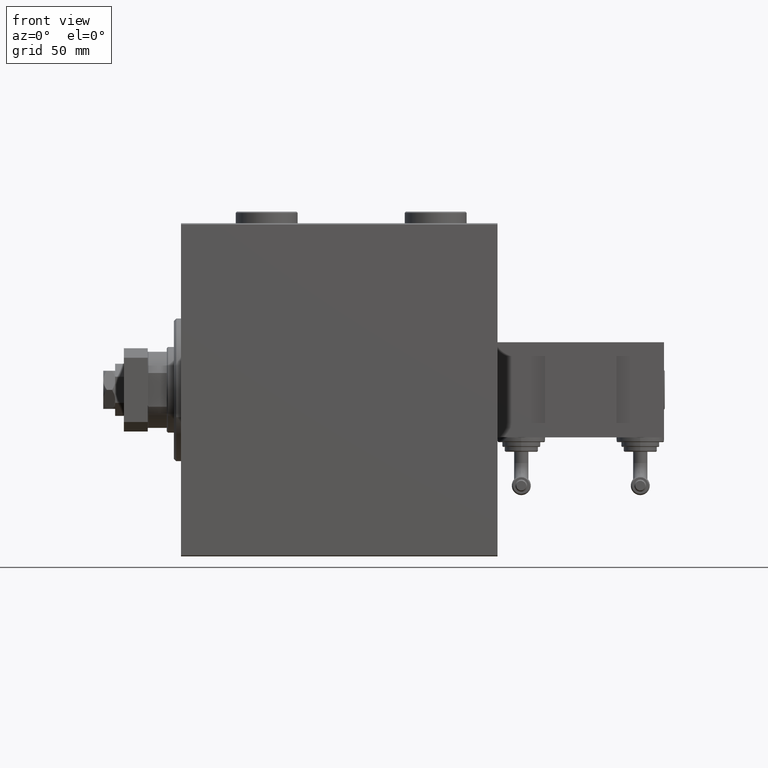
[diagram: clean part render]
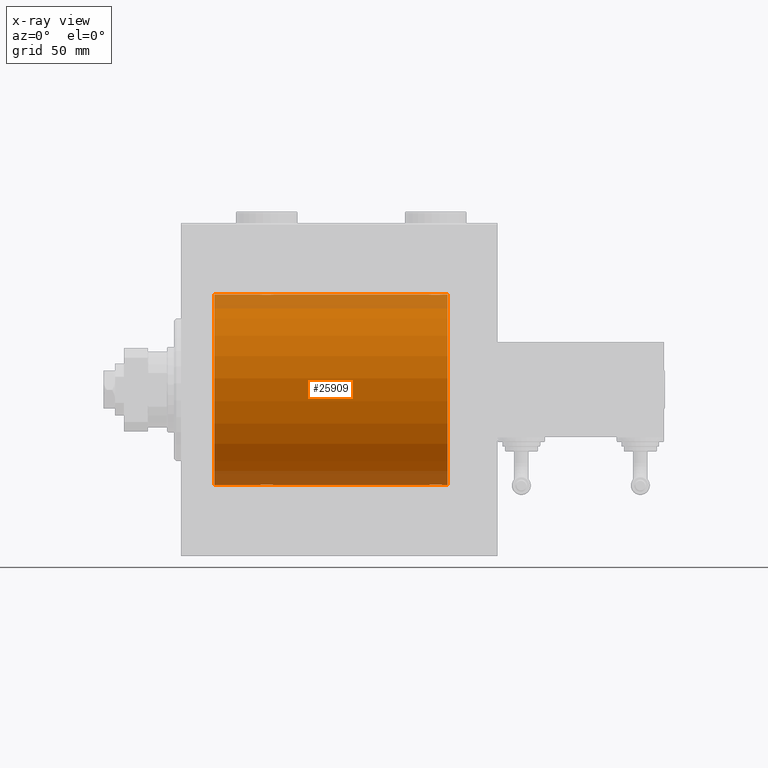
[diagram: x-ray — body ghosted, one internal face saturated and labeled with its STEP entity id]
A machine part, front view, then the same camera in x-ray: the body is ghosted and one INTERNAL B-rep face — a face not visible from any outside direction — is saturated and labeled: STEP entity #25909.
In plain terms, the highlighted cylindrical surface (partial cylindrical patch) has radius 40 mm, axis along (-1, -0, -0).
Its self-contained STEP definition (entity closure, byte-faithful):
#96 = DIRECTION ( 'NONE',  ( -1.000000000000000000, -0.000000000000000000, -0.000000000000000000 ) ) ;
#285 = CARTESIAN_POINT ( 'NONE',  ( 38.25829670320501918, -1.984537326394312462, 39.95097977400578060 ) ) ;
#779 = DIRECTION ( 'NONE',  ( -1.000000000000000000, -0.000000000000000000, -0.000000000000000000 ) ) ;
#1339 = CARTESIAN_POINT ( 'NONE',  ( 34.17309815367587333, -2.387636253591803648, -39.92882473497732576 ) ) ;
#1602 = CARTESIAN_POINT ( 'NONE',  ( 38.84665273013138886, -0.9668189122103337807, -39.98872185468385965 ) ) ;
#1668 = CARTESIAN_POINT ( 'NONE',  ( 104.1533472698686182, -0.9668189122103458821, 39.98872185468384544 ) ) ;
#1716 = ORIENTED_EDGE ( 'NONE', *, *, #34505, .T. ) ;
#1853 = CARTESIAN_POINT ( 'NONE',  ( 33.00000000000000000, -0.3964922677423601272, -40.00000000000001421 ) ) ;
#1961 = DIRECTION ( 'NONE',  ( -1.000000000000000000, 0.000000000000000000, 0.000000000000000000 ) ) ;
#1962 = DIRECTION ( 'NONE',  ( 0.000000000000000000, 0.000000000000000000, 1.000000000000000000 ) ) ;
#2101 = CARTESIAN_POINT ( 'NONE',  ( 39.00000000000000000, 4.898587181755365697E-15, -40.00000000000000000 ) ) ;
#2122 = CARTESIAN_POINT ( 'NONE',  ( 36.77869523415741781, -2.903766417398227162, -39.89448096967571900 ) ) ;
#2192 = CARTESIAN_POINT ( 'NONE',  ( 108.9813627951423456, -2.261082456166716881, 39.93628274425758207 ) ) ;
#2450 = CARTESIAN_POINT ( 'NONE',  ( 109.3825168091146622, -1.833695109615728125, 39.95828327492363741 ) ) ;
#2554 = ORIENTED_EDGE ( 'NONE', *, *, #43270, .T. ) ;
#2611 = CARTESIAN_POINT ( 'NONE',  ( 109.9042517365135296, -0.7773146824710993608, -39.99291453282344122 ) ) ;
#2669 = EDGE_CURVE ( 'NONE', #2677, #20990, #26461, .T. ) ;
#2677 = VERTEX_POINT ( 'NONE', #6740 ) ;
#2713 = CARTESIAN_POINT ( 'NONE',  ( 105.4955691708653518, -2.602909538701771996, 39.91537030566259148 ) ) ;
#2818 = ORIENTED_EDGE ( 'NONE', *, *, #32365, .T. ) ;
#2873 = VERTEX_POINT ( 'NONE', #2101 ) ;
#3142 = CARTESIAN_POINT ( 'NONE',  ( 109.6043359991208632, -1.502129635934003504, -39.97212271185185273 ) ) ;
#3223 = CARTESIAN_POINT ( 'NONE',  ( 34.49556917086532337, -2.602909538701755565, 39.91537030566259148 ) ) ;
#3402 = CARTESIAN_POINT ( 'NONE',  ( 104.7417032967949950, -1.984537326394304468, -39.95097977400578060 ) ) ;
#3661 = CARTESIAN_POINT ( 'NONE',  ( 107.7786952341574249, -2.903766417398237820, -39.89448096967571189 ) ) ;
#3742 = CARTESIAN_POINT ( 'NONE',  ( 33.73902383005257377, -1.981471132463168638, 39.95113231465138881 ) ) ;
#3971 = VERTEX_POINT ( 'NONE', #11741 ) ;
#3999 = CARTESIAN_POINT ( 'NONE',  ( 35.03061658105535514, -2.845855236045346626, 39.89870693240651889 ) ) ;
#5378 = CARTESIAN_POINT ( 'NONE',  ( 112.0000000000000000, 4.898587196589413026E-15, -40.00000000000000000 ) ) ;
#5533 = ORIENTED_EDGE ( 'NONE', *, *, #52512, .T. ) ;
#5570 = CARTESIAN_POINT ( 'NONE',  ( 38.38251680911464803, -1.833695109615719021, 39.95828327492363741 ) ) ;
#5657 = VECTOR ( 'NONE', #11187, 1000.000000000000000 ) ;
#5835 = CARTESIAN_POINT ( 'NONE',  ( 13.99999999999999822, 0.000000000000000000, 0.000000000000000000 ) ) ;
#5841 = CARTESIAN_POINT ( 'NONE',  ( 36.20041286019198168, -2.999840380514733340, -39.88735335562824957 ) ) ;
#5924 = CARTESIAN_POINT ( 'NONE',  ( 104.0000000000000142, 4.637093495725619447E-15, -40.00000000000000000 ) ) ;
#6100 = CARTESIAN_POINT ( 'NONE',  ( 37.98461447812281477, -2.258217541132894191, -39.93644519243654400 ) ) ;
#6169 = CARTESIAN_POINT ( 'NONE',  ( 107.7745567882634248, -2.904869018727233687, 39.89440043036668726 ) ) ;
#6623 = CARTESIAN_POINT ( 'NONE',  ( 37.33224268865864559, -2.695129988695730727, -39.90917164320281074 ) ) ;
#6740 = CARTESIAN_POINT ( 'NONE',  ( 112.0000000000000000, 4.898587196589413026E-15, -40.00000000000000000 ) ) ;
#6852 = CARTESIAN_POINT ( 'NONE',  ( 109.2609761699474404, -1.981471132463168638, -39.95113231465138881 ) ) ;
#7103 = EDGE_CURVE ( 'NONE', #38815, #40115, #47774, .T. ) ;
#7120 = CARTESIAN_POINT ( 'NONE',  ( 104.0000000000000284, -0.3964922677423631803, -40.00000000000000000 ) ) ;
#7732 = CARTESIAN_POINT ( 'NONE',  ( 33.01898122889073051, -0.3904143323715975056, 39.99856256910221219 ) ) ;
#7992 = CARTESIAN_POINT ( 'NONE',  ( 32.99999999999997158, -0.1957844162750553285, 40.00000000000000000 ) ) ;
#9355 = B_SPLINE_CURVE_WITH_KNOTS ( 'NONE', 3,
 ( #40117, #7992, #7732, #28433, #40381, #35883, #31899, #36658, #3742, #39594, #27378, #3223, #19657, #3999, #35618, #19925, #36403, #36149, #52366, #32163, #48359, #11965, #28171, #44363, #12216, #285, #5570, #28948, #20965, #28691, #40900, #29741 ),
 .UNSPECIFIED., .F., .F.,
 ( 4, 2, 2, 2, 2, 2, 2, 2, 2, 2, 2, 2, 2, 2, 2, 4 ),
 ( 0.009382660366305081018, 0.009968941372944116822, 0.01055522237958315263, 0.01114150338622219016, 0.01172778439286122597, 0.01231406539950026177, 0.01290034640613929931, 0.01348662741277833511, 0.01407290841941737092, 0.01465918942605640846, 0.01524547043269544253, 0.01583175143933448006, 0.01641803244597351413, 0.01700431345261255167, 0.01759059445925158921, 0.01876315647252966082 ),
 .UNSPECIFIED. ) ;
#9560 = CARTESIAN_POINT ( 'NONE',  ( 34.49911531595964220, -2.604941918888299401, -39.91523680494982784 ) ) ;
#9628 = CARTESIAN_POINT ( 'NONE',  ( 104.0000000000000142, -1.483492375313373751E-23, 40.00000000000000000 ) ) ;
#9817 = VECTOR ( 'NONE', #29560, 1000.000000000000000 ) ;
#9818 = CARTESIAN_POINT ( 'NONE',  ( 38.60433599912082769, -1.502129635933996621, -39.97212271185184562 ) ) ;
#9885 = CARTESIAN_POINT ( 'NONE',  ( 104.0957482634864846, -0.7773146824711071323, 39.99291453282344833 ) ) ;
#10144 = CARTESIAN_POINT ( 'NONE',  ( 106.2213047658425893, -2.903766417398247590, 39.89448096967571189 ) ) ;
#10341 = CARTESIAN_POINT ( 'NONE',  ( 36.96938341894464486, -2.845855236045336412, -39.89870693240652599 ) ) ;
#10357 = AXIS2_PLACEMENT_3D ( 'NONE', #14944, #1961, #22393 ) ;
#10449 = CARTESIAN_POINT ( 'NONE',  ( 112.0000000000000000, 0.000000000000000000, 0.000000000000000000 ) ) ;
#10669 = CARTESIAN_POINT ( 'NONE',  ( 112.0000000000000000, 0.000000000000000000, 40.00000000000000000 ) ) ;
#10828 = CARTESIAN_POINT ( 'NONE',  ( 105.0186372048576970, -2.261082456166704446, -39.93628274425758917 ) ) ;
#10950 = VECTOR ( 'NONE', #13303, 1000.000000000000000 ) ;
#11092 = CARTESIAN_POINT ( 'NONE',  ( 105.6714635525370483, -2.696981015661927383, -39.90904630908467254 ) ) ;
#11187 = DIRECTION ( 'NONE',  ( -1.000000000000000000, -0.000000000000000000, -0.000000000000000000 ) ) ;
#11741 = CARTESIAN_POINT ( 'NONE',  ( 39.00000000000000000, -1.886242593979369380E-15, 40.00000000000000000 ) ) ;
#11965 = CARTESIAN_POINT ( 'NONE',  ( 37.32853644746295885, -2.696981015661930936, 39.90904630908465833 ) ) ;
#12216 = CARTESIAN_POINT ( 'NONE',  ( 37.98136279514229585, -2.261082456166712440, 39.93628274425758207 ) ) ;
#12601 = CARTESIAN_POINT ( 'NONE',  ( 32.99999999999999289, -1.483452932268112700E-23, 40.00000000000000000 ) ) ;
#13151 = CARTESIAN_POINT ( 'NONE',  ( 110.0000000000000142, 4.898587181754971267E-15, -40.00000000000000000 ) ) ;
#13303 = DIRECTION ( 'NONE',  ( -1.000000000000000000, -0.000000000000000000, -0.000000000000000000 ) ) ;
#13332 = VERTEX_POINT ( 'NONE', #19132 ) ;
#13339 = LINE ( 'NONE', #25556, #9817 ) ;
#13790 = CARTESIAN_POINT ( 'NONE',  ( 33.74170329679496660, -1.984537326394296253, -39.95097977400577349 ) ) ;
#13861 = CARTESIAN_POINT ( 'NONE',  ( 104.7390238300526022, -1.981471132463181295, 39.95113231465138881 ) ) ;
#14118 = CARTESIAN_POINT ( 'NONE',  ( 104.3027865941912182, -1.327859336864157358, 39.97836169682016561 ) ) ;
#14313 = CARTESIAN_POINT ( 'NONE',  ( 36.39522483453575319, -2.980272303779539556, -39.88883864243169342 ) ) ;
#14380 = CARTESIAN_POINT ( 'NONE',  ( 104.0189812288907376, -0.3904143323716007807, 39.99856256910221219 ) ) ;
#14569 = CARTESIAN_POINT ( 'NONE',  ( 39.00000000000000000, 4.898587181755365697E-15, -40.00000000000000000 ) ) ;
#14577 = EDGE_CURVE ( 'NONE', #49712, #23474, #23342, .T. ) ;
#14849 = EDGE_LOOP ( 'NONE', ( #29963, #46926, #50430, #48357, #2818, #5533, #36885, #51799, #2554, #49166, #1716, #16680 ) ) ;
#14944 = CARTESIAN_POINT ( 'NONE',  ( 112.0000000000000000, 0.000000000000000000, 0.000000000000000000 ) ) ;
#15320 = CARTESIAN_POINT ( 'NONE',  ( 108.9846144781227935, -2.258217541132904405, -39.93644519243652979 ) ) ;
#15560 = CARTESIAN_POINT ( 'NONE',  ( 13.99999999999999822, 4.898587196589413026E-15, -40.00000000000000000 ) ) ;
#15590 = CARTESIAN_POINT ( 'NONE',  ( 104.0797382500835369, -0.7903958539027354790, -39.99381900068937057 ) ) ;
#15861 = CARTESIAN_POINT ( 'NONE',  ( 105.4991153159596564, -2.604941918888313612, -39.91523680494982784 ) ) ;
#16309 = EDGE_CURVE ( 'NONE', #20990, #37607, #13339, .T. ) ;
#16450 = EDGE_CURVE ( 'NONE', #25764, #23474, #30861, .T. ) ;
#16680 = ORIENTED_EDGE ( 'NONE', *, *, #16309, .F. ) ;
#16948 = LINE ( 'NONE', #20686, #35236 ) ;
#17516 = CARTESIAN_POINT ( 'NONE',  ( 34.01863720485771125, -2.261082456166694676, -39.93628274425758917 ) ) ;
#17547 = LINE ( 'NONE', #21269, #10950 ) ;
#17776 = CARTESIAN_POINT ( 'NONE',  ( 35.03510674146485115, -2.847401743820447084, -39.89859630624608400 ) ) ;
#18620 = CARTESIAN_POINT ( 'NONE',  ( 109.9202617499164916, -0.7903958539027468033, 39.99381900068937057 ) ) ;
#19050 = CARTESIAN_POINT ( 'NONE',  ( 109.8466527301314102, -0.9668189122103358901, -39.98872185468385254 ) ) ;
#19132 = CARTESIAN_POINT ( 'NONE',  ( 32.99999999999999289, 8.398598542115384856E-15, -40.00000000000000000 ) ) ;
#19575 = CARTESIAN_POINT ( 'NONE',  ( 104.3981127187150832, -1.506322235190780345, -39.97196309111975410 ) ) ;
#19657 = CARTESIAN_POINT ( 'NONE',  ( 34.66775731134134020, -2.695129988695739609, 39.90917164320281074 ) ) ;
#19848 = CARTESIAN_POINT ( 'NONE',  ( 107.3952248345357390, -2.980272303779549325, -39.88883864243167920 ) ) ;
#19925 = CARTESIAN_POINT ( 'NONE',  ( 35.60477516546423260, -2.980272303779554655, 39.88883864243167920 ) ) ;
#20179 = VECTOR ( 'NONE', #96, 1000.000000000000000 ) ;
#20387 = B_SPLINE_CURVE_WITH_KNOTS ( 'NONE', 3,
 ( #9628, #51056, #14380, #9885, #1668, #14118, #34073, #38827, #13861, #34841, #22350, #2713, #47066, #25825, #10144, #42555, #26868, #50799, #33814, #6169, #38565, #22614, #30080, #46797, #2192, #34328, #2450, #26605, #42041, #18620, #26087, #30336 ),
 .UNSPECIFIED., .F., .F.,
 ( 4, 2, 2, 2, 2, 2, 2, 2, 2, 2, 2, 2, 2, 2, 2, 4 ),
 ( 0.009382660366305098365, 0.009968941372944135904, 0.01055522237958317344, 0.01114150338622220925, 0.01172778439286124678, 0.01231406539950028432, 0.01290034640613932013, 0.01348662741277835767, 0.01407290841941739520, 0.01465918942605643274, 0.01524547043269547028, 0.01583175143933450435, 0.01641803244597354189, 0.01700431345261257943, 0.01759059445925161697, 0.01876315647252969204 ),
 .UNSPECIFIED. ) ;
#20451 = CARTESIAN_POINT ( 'NONE',  ( 110.0000000000000142, -2.794909241144302331E-15, 40.00000000000000000 ) ) ;
#20686 = CARTESIAN_POINT ( 'NONE',  ( 112.0000000000000000, 0.000000000000000000, 40.00000000000000000 ) ) ;
#20965 = CARTESIAN_POINT ( 'NONE',  ( 38.69537007708435539, -1.331594428131646080, 39.97823692017209396 ) ) ;
#20990 = VERTEX_POINT ( 'NONE', #30493 ) ;
#21269 = CARTESIAN_POINT ( 'NONE',  ( 112.0000000000000000, 4.898587196589413026E-15, -40.00000000000000000 ) ) ;
#22021 = CARTESIAN_POINT ( 'NONE',  ( 38.98101877110926239, -0.3904143323715922875, -39.99856256910221219 ) ) ;
#22139 = VERTEX_POINT ( 'NONE', #31318 ) ;
#22350 = CARTESIAN_POINT ( 'NONE',  ( 105.1695517717759998, -2.384933850258125876, 39.92898715513240404 ) ) ;
#22393 = DIRECTION ( 'NONE',  ( 0.000000000000000000, 0.000000000000000000, 1.000000000000000000 ) ) ;
#22614 = CARTESIAN_POINT ( 'NONE',  ( 108.3285364474629660, -2.696981015661940262, 39.90904630908467254 ) ) ;
#22806 = CARTESIAN_POINT ( 'NONE',  ( 35.80439468926913094, -3.000157693440628659, -39.88732948994960736 ) ) ;
#22856 = CARTESIAN_POINT ( 'NONE',  ( 112.0000000000000000, 4.898587196589413026E-15, -40.00000000000000000 ) ) ;
#23034 = CARTESIAN_POINT ( 'NONE',  ( 108.8304482282240286, -2.384933850258111221, -39.92898715513240404 ) ) ;
#23342 = CIRCLE ( 'NONE', #43734, 40.00000000000000000 ) ;
#23474 = VERTEX_POINT ( 'NONE', #48244 ) ;
#23559 = CARTESIAN_POINT ( 'NONE',  ( 110.0000000000000142, 4.898587181754971267E-15, -40.00000000000000000 ) ) ;
#25556 = CARTESIAN_POINT ( 'NONE',  ( 112.0000000000000000, 0.000000000000000000, 40.00000000000000000 ) ) ;
#25764 = VERTEX_POINT ( 'NONE', #12601 ) ;
#25825 = CARTESIAN_POINT ( 'NONE',  ( 106.0306165810553409, -2.845855236045354619, 39.89870693240651178 ) ) ;
#25909 = ADVANCED_FACE ( 'NONE', ( #38341 ), #51100, .F. ) ;
#26087 = CARTESIAN_POINT ( 'NONE',  ( 110.0000000000000000, -0.3964922677423690645, 40.00000000000000000 ) ) ;
#26461 = CIRCLE ( 'NONE', #10357, 40.00000000000000000 ) ;
#26605 = CARTESIAN_POINT ( 'NONE',  ( 109.6018872812849310, -1.506322235190793668, 39.97196309111975410 ) ) ;
#26868 = CARTESIAN_POINT ( 'NONE',  ( 106.7995871398080254, -2.999840380514755100, 39.88735335562824957 ) ) ;
#26941 = EDGE_CURVE ( 'NONE', #2677, #38815, #17547, .T. ) ;
#27028 = CARTESIAN_POINT ( 'NONE',  ( 108.5044308291346482, -2.602909538701758674, -39.91537030566259148 ) ) ;
#27251 = EDGE_CURVE ( 'NONE', #22139, #3971, #16948, .T. ) ;
#27378 = CARTESIAN_POINT ( 'NONE',  ( 34.16955177177597847, -2.384933850258108556, 39.92898715513240404 ) ) ;
#28171 = CARTESIAN_POINT ( 'NONE',  ( 37.50088468404035069, -2.604941918888315833, 39.91523680494983495 ) ) ;
#28433 = CARTESIAN_POINT ( 'NONE',  ( 33.09574826348647036, -0.7773146824711031355, 39.99291453282343412 ) ) ;
#28691 = CARTESIAN_POINT ( 'NONE',  ( 38.92026174991646315, -0.7903958539027399199, 39.99381900068935636 ) ) ;
#28948 = CARTESIAN_POINT ( 'NONE',  ( 38.60188728128492386, -1.506322235190783232, 39.97196309111974699 ) ) ;
#29560 = DIRECTION ( 'NONE',  ( -1.000000000000000000, -0.000000000000000000, -0.000000000000000000 ) ) ;
#29741 = CARTESIAN_POINT ( 'NONE',  ( 39.00000000000000000, -1.886242593979369380E-15, 40.00000000000000000 ) ) ;
#29751 = CARTESIAN_POINT ( 'NONE',  ( 33.07973825008353685, -0.7903958539027335917, -39.99381900068937057 ) ) ;
#29963 = ORIENTED_EDGE ( 'NONE', *, *, #2669, .F. ) ;
#30010 = CARTESIAN_POINT ( 'NONE',  ( 32.99999999999999289, 8.398598542115384856E-15, -40.00000000000000000 ) ) ;
#30080 = CARTESIAN_POINT ( 'NONE',  ( 108.5008846840403436, -2.604941918888326935, 39.91523680494982784 ) ) ;
#30336 = CARTESIAN_POINT ( 'NONE',  ( 110.0000000000000142, -2.794909241144302331E-15, 40.00000000000000000 ) ) ;
#30493 = CARTESIAN_POINT ( 'NONE',  ( 112.0000000000000000, 0.000000000000000000, 40.00000000000000000 ) ) ;
#30530 = CARTESIAN_POINT ( 'NONE',  ( 35.60890307490667794, -2.980812880639888363, -39.88879797994690080 ) ) ;
#30795 = CARTESIAN_POINT ( 'NONE',  ( 37.83044822822401443, -2.384933850258097010, -39.92898715513240404 ) ) ;
#30861 = LINE ( 'NONE', #10669, #5657 ) ;
#31029 = CARTESIAN_POINT ( 'NONE',  ( 104.6174831908853804, -1.833695109615715690, -39.95828327492363741 ) ) ;
#31292 = CARTESIAN_POINT ( 'NONE',  ( 106.6089030749067064, -2.980812880639896356, -39.88879797994688658 ) ) ;
#31318 = CARTESIAN_POINT ( 'NONE',  ( 104.0000000000000142, -1.483492375313373751E-23, 40.00000000000000000 ) ) ;
#31899 = CARTESIAN_POINT ( 'NONE',  ( 33.39566400087915810, -1.502129635934004170, 39.97212271185186694 ) ) ;
#32084 = CARTESIAN_POINT ( 'NONE',  ( 105.1730981536759089, -2.387636253591818747, -39.92882473497732576 ) ) ;
#32163 = CARTESIAN_POINT ( 'NONE',  ( 36.77455678826341057, -2.904869018727228358, 39.89440043036668015 ) ) ;
#32365 = EDGE_CURVE ( 'NONE', #2873, #13332, #35184, .T. ) ;
#33743 = CARTESIAN_POINT ( 'NONE',  ( 33.30462992291564461, -1.331594428131637420, -39.97823692017210817 ) ) ;
#33814 = CARTESIAN_POINT ( 'NONE',  ( 107.3910969250933505, -2.980812880639910123, 39.88879797994688658 ) ) ;
#34073 = CARTESIAN_POINT ( 'NONE',  ( 104.3956640008791794, -1.502129635934016383, 39.97212271185185983 ) ) ;
#34252 = DIRECTION ( 'NONE',  ( 0.000000000000000000, 0.000000000000000000, 1.000000000000000000 ) ) ;
#34328 = CARTESIAN_POINT ( 'NONE',  ( 109.2582967032050192, -1.984537326394317569, 39.95097977400578060 ) ) ;
#34505 = EDGE_CURVE ( 'NONE', #22139, #37607, #20387, .T. ) ;
#34775 = CARTESIAN_POINT ( 'NONE',  ( 35.22544321173659654, -2.904869018727211483, -39.89440043036668726 ) ) ;
#34841 = CARTESIAN_POINT ( 'NONE',  ( 105.0153855218772065, -2.258217541132916395, 39.93644519243652979 ) ) ;
#35091 = LINE ( 'NONE', #22856, #47833 ) ;
#35184 = B_SPLINE_CURVE_WITH_KNOTS ( 'NONE', 3,
 ( #14569, #37976, #22021, #38493, #1602, #42231, #9818, #50469, #45953, #6100, #30795, #43015, #6623, #10341, #2122, #14313, #5841, #22806, #30530, #34775, #17776, #50208, #9560, #1339, #17516, #13790, #46730, #38232, #33743, #29751, #1853, #30010 ),
 .UNSPECIFIED., .F., .F.,
 ( 4, 2, 2, 2, 2, 2, 2, 2, 2, 2, 2, 2, 2, 2, 2, 4 ),
 ( 0.009382660366305113978, 0.009968941372944149781, 0.01055522237958318559, 0.01114150338622222139, 0.01172778439286125719, 0.01231406539950029300, 0.01290034640613932707, 0.01348662741277836287, 0.01407290841941739867, 0.01465918942605643448, 0.01524547043269547028, 0.01583175143933450435, 0.01641803244597354189, 0.01700431345261257943, 0.01759059445925161697, 0.01876315647252968857 ),
 .UNSPECIFIED. ) ;
#35236 = VECTOR ( 'NONE', #779, 1000.000000000000000 ) ;
#35275 = CARTESIAN_POINT ( 'NONE',  ( 106.8043946892691736, -3.000157693440637985, -39.88732948994960026 ) ) ;
#35524 = AXIS2_PLACEMENT_3D ( 'NONE', #10449, #38871, #1962 ) ;
#35618 = CARTESIAN_POINT ( 'NONE',  ( 35.22130476584258219, -2.903766417398241373, 39.89448096967571189 ) ) ;
#35800 = CARTESIAN_POINT ( 'NONE',  ( 104.0000000000000142, 4.637093495725619447E-15, -40.00000000000000000 ) ) ;
#35883 = CARTESIAN_POINT ( 'NONE',  ( 33.30278659419118270, -1.327859336864149586, 39.97836169682017982 ) ) ;
#36149 = CARTESIAN_POINT ( 'NONE',  ( 36.19560531073086196, -3.000157693440645090, 39.88732948994960026 ) ) ;
#36403 = CARTESIAN_POINT ( 'NONE',  ( 35.79958713980801832, -2.999840380514748883, 39.88735335562824247 ) ) ;
#36658 = CARTESIAN_POINT ( 'NONE',  ( 33.61492399084646365, -1.830402106103518056, 39.95843610133494650 ) ) ;
#36885 = ORIENTED_EDGE ( 'NONE', *, *, #14577, .T. ) ;
#37607 = VERTEX_POINT ( 'NONE', #20451 ) ;
#37976 = CARTESIAN_POINT ( 'NONE',  ( 39.00000000000000000, -0.1957844162750501937, -39.99999999999999289 ) ) ;
#38232 = CARTESIAN_POINT ( 'NONE',  ( 33.39811271871507614, -1.506322235190776127, -39.97196309111974699 ) ) ;
#38341 = FACE_OUTER_BOUND ( 'NONE', #14849, .T. ) ;
#38493 = CARTESIAN_POINT ( 'NONE',  ( 38.90425173651352253, -0.7773146824710970293, -39.99291453282343412 ) ) ;
#38565 = CARTESIAN_POINT ( 'NONE',  ( 107.9648932585351417, -2.847401743820471065, 39.89859630624608400 ) ) ;
#38815 = VERTEX_POINT ( 'NONE', #13151 ) ;
#38827 = CARTESIAN_POINT ( 'NONE',  ( 104.6149239908464921, -1.830402106103529380, 39.95843610133493229 ) ) ;
#38871 = DIRECTION ( 'NONE',  ( -1.000000000000000000, -0.000000000000000000, -0.000000000000000000 ) ) ;
#39074 = DIRECTION ( 'NONE',  ( -1.000000000000000000, -0.000000000000000000, -0.000000000000000000 ) ) ;
#39515 = CARTESIAN_POINT ( 'NONE',  ( 109.6972134058088386, -1.327859336864146700, -39.97836169682017982 ) ) ;
#39594 = CARTESIAN_POINT ( 'NONE',  ( 34.01538552187719233, -2.258217541132905293, 39.93644519243653690 ) ) ;
#39775 = CARTESIAN_POINT ( 'NONE',  ( 107.9693834189446875, -2.845855236045339520, -39.89870693240651178 ) ) ;
#40036 = CARTESIAN_POINT ( 'NONE',  ( 110.0000000000000284, -0.1957844162750512762, -39.99999999999999289 ) ) ;
#40115 = VERTEX_POINT ( 'NONE', #5924 ) ;
#40117 = CARTESIAN_POINT ( 'NONE',  ( 32.99999999999999289, -1.483452932268112700E-23, 40.00000000000000000 ) ) ;
#40381 = CARTESIAN_POINT ( 'NONE',  ( 33.15334726986859692, -0.9668189122103382216, 39.98872185468385254 ) ) ;
#40900 = CARTESIAN_POINT ( 'NONE',  ( 38.99999999999999289, -0.3964922677423670661, 40.00000000000000711 ) ) ;
#41766 = LINE ( 'NONE', #5378, #20179 ) ;
#42041 = CARTESIAN_POINT ( 'NONE',  ( 109.6953700770843767, -1.331594428131652963, 39.97823692017208685 ) ) ;
#42231 = CARTESIAN_POINT ( 'NONE',  ( 38.69721340580881019, -1.327859336864143147, -39.97836169682018692 ) ) ;
#42555 = CARTESIAN_POINT ( 'NONE',  ( 106.6047751654642468, -2.980272303779561316, 39.88883864243167920 ) ) ;
#43015 = CARTESIAN_POINT ( 'NONE',  ( 37.50443082913467663, -2.602909538701744463, -39.91537030566261279 ) ) ;
#43151 = EDGE_CURVE ( 'NONE', #40115, #2873, #35091, .T. ) ;
#43270 = EDGE_CURVE ( 'NONE', #25764, #3971, #9355, .T. ) ;
#43508 = CARTESIAN_POINT ( 'NONE',  ( 109.9810187711093050, -0.3904143323715937308, -39.99856256910221219 ) ) ;
#43734 = AXIS2_PLACEMENT_3D ( 'NONE', #5835, #50725, #34252 ) ;
#44363 = CARTESIAN_POINT ( 'NONE',  ( 37.82690184632411956, -2.387636253591820523, 39.92882473497731866 ) ) ;
#45953 = CARTESIAN_POINT ( 'NONE',  ( 38.26097616994741912, -1.981471132463159535, -39.95113231465138881 ) ) ;
#46730 = CARTESIAN_POINT ( 'NONE',  ( 33.61748319088536618, -1.833695109615709917, -39.95828327492364451 ) ) ;
#46797 = CARTESIAN_POINT ( 'NONE',  ( 108.8269018463241053, -2.387636253591832514, 39.92882473497732576 ) ) ;
#46926 = ORIENTED_EDGE ( 'NONE', *, *, #26941, .T. ) ;
#47066 = CARTESIAN_POINT ( 'NONE',  ( 105.6677573113413615, -2.695129988695747603, 39.90917164320281785 ) ) ;
#47226 = CARTESIAN_POINT ( 'NONE',  ( 106.2254432117366036, -2.904869018727219920, -39.89440043036668726 ) ) ;
#47485 = CARTESIAN_POINT ( 'NONE',  ( 106.0351067414648725, -2.847401743820458631, -39.89859630624608400 ) ) ;
#47774 = B_SPLINE_CURVE_WITH_KNOTS ( 'NONE', 3,
 ( #23559, #40036, #43508, #2611, #19050, #39515, #3142, #48020, #6852, #15320, #23034, #27028, #51225, #39775, #3661, #19848, #52290, #35275, #31292, #47226, #47485, #11092, #15861, #32084, #10828, #3402, #31029, #19575, #48279, #15590, #7120, #35800 ),
 .UNSPECIFIED., .F., .F.,
 ( 4, 2, 2, 2, 2, 2, 2, 2, 2, 2, 2, 2, 2, 2, 2, 4 ),
 ( 0.009382660366305127855, 0.009968941372944165394, 0.01055522237958320120, 0.01114150338622223874, 0.01172778439286127627, 0.01231406539950031381, 0.01290034640613934962, 0.01348662741277838716, 0.01407290841941742296, 0.01465918942605646050, 0.01524547043269549804, 0.01583175143933453557, 0.01641803244597356964, 0.01700431345261260718, 0.01759059445925164472, 0.01876315647252971980 ),
 .UNSPECIFIED. ) ;
#47833 = VECTOR ( 'NONE', #39074, 1000.000000000000000 ) ;
#48020 = CARTESIAN_POINT ( 'NONE',  ( 109.3850760091535506, -1.830402106103516058, -39.95843610133493229 ) ) ;
#48244 = CARTESIAN_POINT ( 'NONE',  ( 13.99999999999999822, 0.000000000000000000, 40.00000000000000000 ) ) ;
#48279 = CARTESIAN_POINT ( 'NONE',  ( 104.3046299229156233, -1.331594428131639640, -39.97823692017208685 ) ) ;
#48357 = ORIENTED_EDGE ( 'NONE', *, *, #43151, .T. ) ;
#48359 = CARTESIAN_POINT ( 'NONE',  ( 36.96489325853514174, -2.847401743820462183, 39.89859630624607689 ) ) ;
#49166 = ORIENTED_EDGE ( 'NONE', *, *, #27251, .F. ) ;
#49712 = VERTEX_POINT ( 'NONE', #15560 ) ;
#50208 = CARTESIAN_POINT ( 'NONE',  ( 34.67146355253703405, -2.696981015661913172, -39.90904630908467254 ) ) ;
#50430 = ORIENTED_EDGE ( 'NONE', *, *, #7103, .T. ) ;
#50469 = CARTESIAN_POINT ( 'NONE',  ( 38.38507600915352924, -1.830402106103509174, -39.95843610133493229 ) ) ;
#50725 = DIRECTION ( 'NONE',  ( -1.000000000000000000, 0.000000000000000000, 0.000000000000000000 ) ) ;
#50799 = CARTESIAN_POINT ( 'NONE',  ( 107.1956053107308406, -3.000157693440651752, 39.88732948994960026 ) ) ;
#51056 = CARTESIAN_POINT ( 'NONE',  ( 104.0000000000000142, -0.1957844162750575212, 39.99999999999999289 ) ) ;
#51100 = CYLINDRICAL_SURFACE ( 'NONE', #35524, 40.00000000000000000 ) ;
#51225 = CARTESIAN_POINT ( 'NONE',  ( 108.3322426886586669, -2.695129988695733836, -39.90917164320281785 ) ) ;
#51799 = ORIENTED_EDGE ( 'NONE', *, *, #16450, .F. ) ;
#52290 = CARTESIAN_POINT ( 'NONE',  ( 107.2004128601920030, -2.999840380514741334, -39.88735335562824957 ) ) ;
#52366 = CARTESIAN_POINT ( 'NONE',  ( 36.39109692509333627, -2.980812880639903906, 39.88879797994688658 ) ) ;
#52512 = EDGE_CURVE ( 'NONE', #13332, #49712, #41766, .T. ) ;